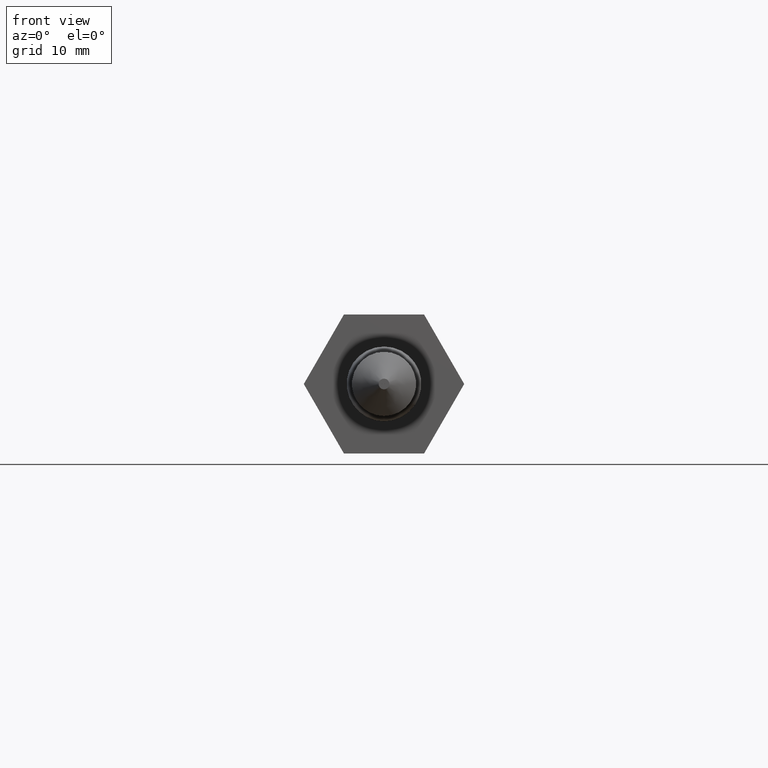
[diagram: clean part render]
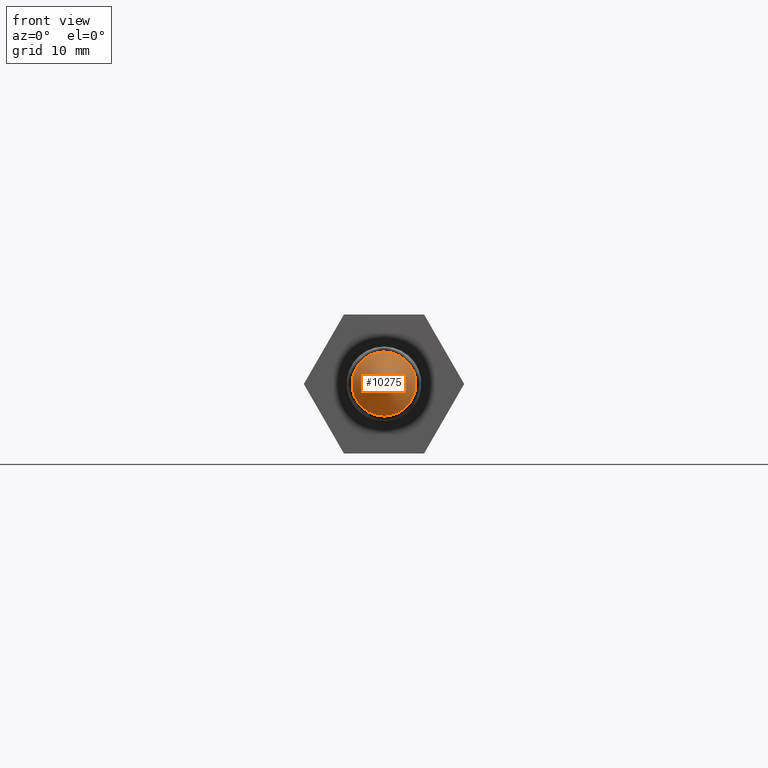
[diagram: same view with one face highlighted and labeled with its STEP entity id]
A machine part, front view. The second image highlights one B-rep face of the part: STEP entity #10275.
In plain terms, the highlighted conical surface has half-angle 45 deg.
Its self-contained STEP definition (entity closure, byte-faithful):
#509 = FACE_OUTER_BOUND ( 'NONE', #10440, .T. ) ;
#3203 = DIRECTION ( 'NONE',  ( 0.0000000000000000000, 0.0000000000000000000, 1.000000000000000000 ) ) ;
#3350 = ORIENTED_EDGE ( 'NONE', *, *, #5776, .F. ) ;
#3547 = DIRECTION ( 'NONE',  ( 0.0000000000000000000, 0.0000000000000000000, -1.000000000000000000 ) ) ;
#4550 = CIRCLE ( 'NONE', #8142, 3.000000000000007100 ) ;
#5102 = AXIS2_PLACEMENT_3D ( 'NONE', #16269, #14926, #3547 ) ;
#5608 = CIRCLE ( 'NONE', #5102, 0.5000000000000143200 ) ;
#5776 = EDGE_CURVE ( 'NONE', #6753, #6753, #4550, .T. ) ;
#5955 = CARTESIAN_POINT ( 'NONE',  ( 0.0000000000000000000, -62.75000000000000000, -0.5000000000000143200 ) ) ;
#6438 = AXIS2_PLACEMENT_3D ( 'NONE', #15856, #12057, #3203 ) ;
#6753 = VERTEX_POINT ( 'NONE', #16227 ) ;
#8142 = AXIS2_PLACEMENT_3D ( 'NONE', #8420, #16033, #13510 ) ;
#8420 = CARTESIAN_POINT ( 'NONE',  ( 0.0000000000000000000, -60.25000000000001400, 0.0000000000000000000 ) ) ;
#8422 = CONICAL_SURFACE ( 'NONE', #6438, 0.5000000000000143200, 0.7853981633974491700 ) ;
#10275 = ADVANCED_FACE ( 'NONE', ( #509, #14653 ), #8422, .T. ) ;
#10440 = EDGE_LOOP ( 'NONE', ( #3350 ) ) ;
#12057 = DIRECTION ( 'NONE',  ( 0.0000000000000000000, 1.000000000000000000, 0.0000000000000000000 ) ) ;
#13510 = DIRECTION ( 'NONE',  ( 0.0000000000000000000, 0.0000000000000000000, -1.000000000000000000 ) ) ;
#13819 = EDGE_CURVE ( 'NONE', #15748, #15748, #5608, .T. ) ;
#14653 = FACE_BOUND ( 'NONE', #14831, .T. ) ;
#14831 = EDGE_LOOP ( 'NONE', ( #15685 ) ) ;
#14926 = DIRECTION ( 'NONE',  ( -0.0000000000000000000, -1.000000000000000000, -0.0000000000000000000 ) ) ;
#15685 = ORIENTED_EDGE ( 'NONE', *, *, #13819, .F. ) ;
#15748 = VERTEX_POINT ( 'NONE', #5955 ) ;
#15856 = CARTESIAN_POINT ( 'NONE',  ( 0.0000000000000000000, -62.75000000000000000, 0.0000000000000000000 ) ) ;
#16033 = DIRECTION ( 'NONE',  ( 0.0000000000000000000, 1.000000000000000000, 0.0000000000000000000 ) ) ;
#16227 = CARTESIAN_POINT ( 'NONE',  ( 0.0000000000000000000, -60.25000000000001400, -3.000000000000007100 ) ) ;
#16269 = CARTESIAN_POINT ( 'NONE',  ( 0.0000000000000000000, -62.75000000000000000, 0.0000000000000000000 ) ) ;